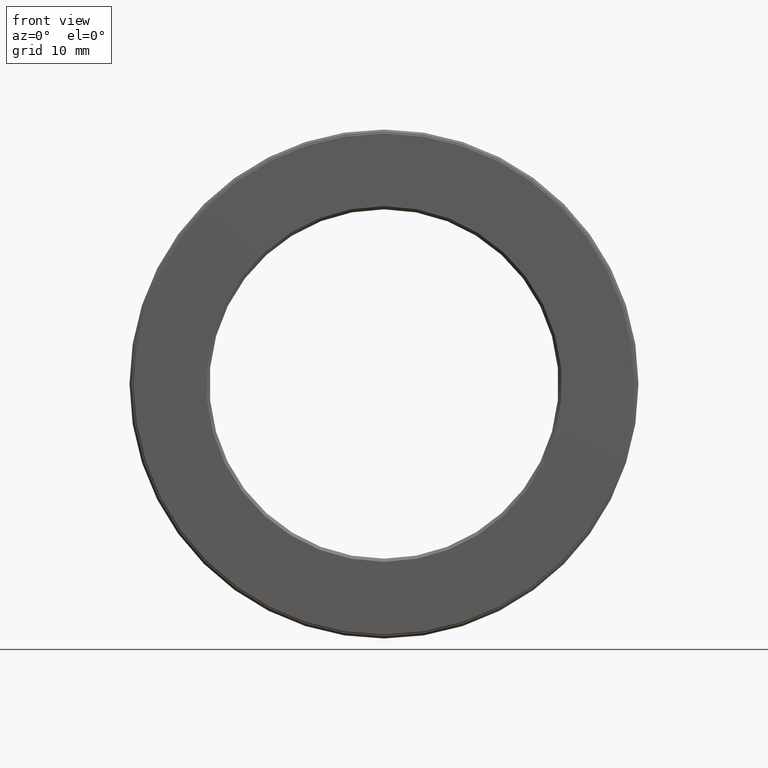
[diagram: clean part render]
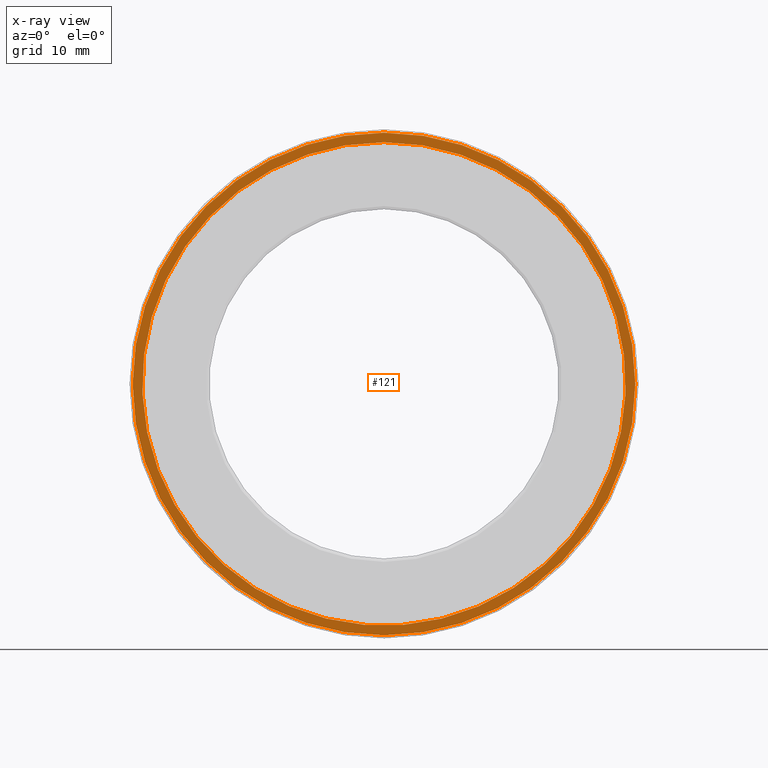
[diagram: x-ray — body ghosted, one internal face saturated and labeled with its STEP entity id]
A machine part, front view, then the same camera in x-ray: the body is ghosted and one INTERNAL B-rep face — a face not visible from any outside direction — is saturated and labeled: STEP entity #121.
In plain terms, the highlighted planar face has unit normal (-0, 1, 0).
Its self-contained STEP definition (entity closure, byte-faithful):
#7 = PLANE ( 'NONE',  #479 ) ;
#30 = EDGE_LOOP ( 'NONE', ( #361 ) ) ;
#62 = CIRCLE ( 'NONE', #168, 1.513749999999999900 ) ;
#94 = DIRECTION ( 'NONE',  ( -0.0000000000000000000, 1.000000000000000000, -0.0000000000000000000 ) ) ;
#101 = EDGE_CURVE ( 'NONE', #401, #401, #62, .T. ) ;
#115 = DIRECTION ( 'NONE',  ( -0.0000000000000000000, 1.000000000000000000, -0.0000000000000000000 ) ) ;
#121 = ADVANCED_FACE ( 'NONE', ( #498, #217 ), #7, .F. ) ;
#131 = CARTESIAN_POINT ( 'NONE',  ( 0.0000000000000000000, 0.7775000000000000800, 1.573749999999999800 ) ) ;
#142 = CARTESIAN_POINT ( 'NONE',  ( 0.0000000000000000000, 0.7775000000000000800, 0.0000000000000000000 ) ) ;
#148 = DIRECTION ( 'NONE',  ( -0.0000000000000000000, 1.000000000000000000, 0.0000000000000000000 ) ) ;
#168 = AXIS2_PLACEMENT_3D ( 'NONE', #243, #94, #239 ) ;
#217 = FACE_BOUND ( 'NONE', #420, .T. ) ;
#239 = DIRECTION ( 'NONE',  ( 0.0000000000000000000, 0.0000000000000000000, 1.000000000000000000 ) ) ;
#243 = CARTESIAN_POINT ( 'NONE',  ( 0.0000000000000000000, 0.7775000000000000800, 0.0000000000000000000 ) ) ;
#264 = VERTEX_POINT ( 'NONE', #131 ) ;
#297 = CIRCLE ( 'NONE', #497, 1.573749999999999800 ) ;
#354 = EDGE_CURVE ( 'NONE', #264, #264, #297, .T. ) ;
#361 = ORIENTED_EDGE ( 'NONE', *, *, #354, .F. ) ;
#376 = ORIENTED_EDGE ( 'NONE', *, *, #101, .T. ) ;
#401 = VERTEX_POINT ( 'NONE', #468 ) ;
#420 = EDGE_LOOP ( 'NONE', ( #376 ) ) ;
#464 = DIRECTION ( 'NONE',  ( 0.0000000000000000000, 0.0000000000000000000, 1.000000000000000000 ) ) ;
#468 = CARTESIAN_POINT ( 'NONE',  ( 0.0000000000000000000, 0.7775000000000000800, 1.513749999999999900 ) ) ;
#479 = AXIS2_PLACEMENT_3D ( 'NONE', #142, #148, #464 ) ;
#497 = AXIS2_PLACEMENT_3D ( 'NONE', #529, #115, #582 ) ;
#498 = FACE_OUTER_BOUND ( 'NONE', #30, .T. ) ;
#529 = CARTESIAN_POINT ( 'NONE',  ( 0.0000000000000000000, 0.7775000000000000800, 0.0000000000000000000 ) ) ;
#582 = DIRECTION ( 'NONE',  ( 0.0000000000000000000, 0.0000000000000000000, 1.000000000000000000 ) ) ;